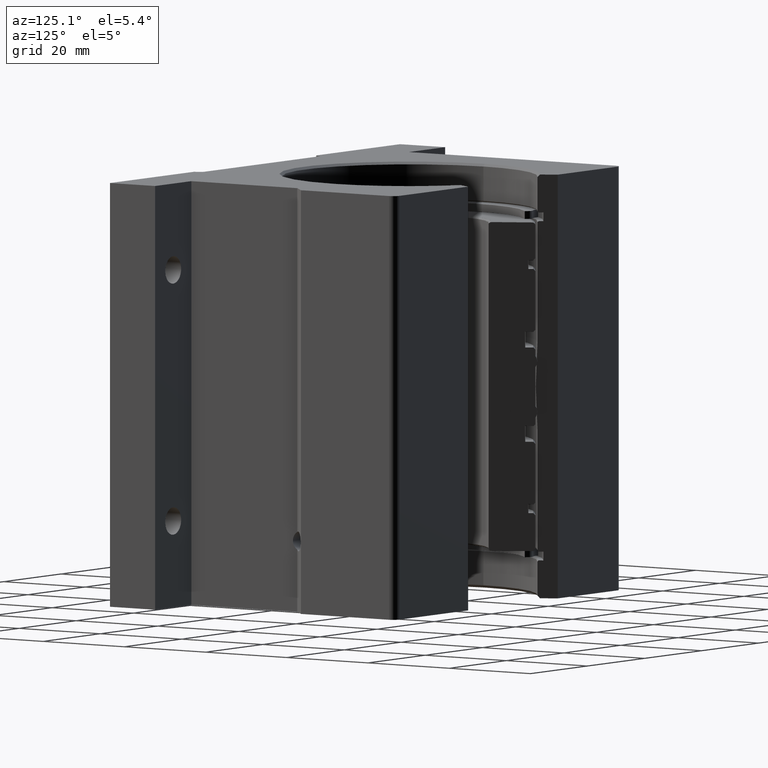
[diagram: clean part render]
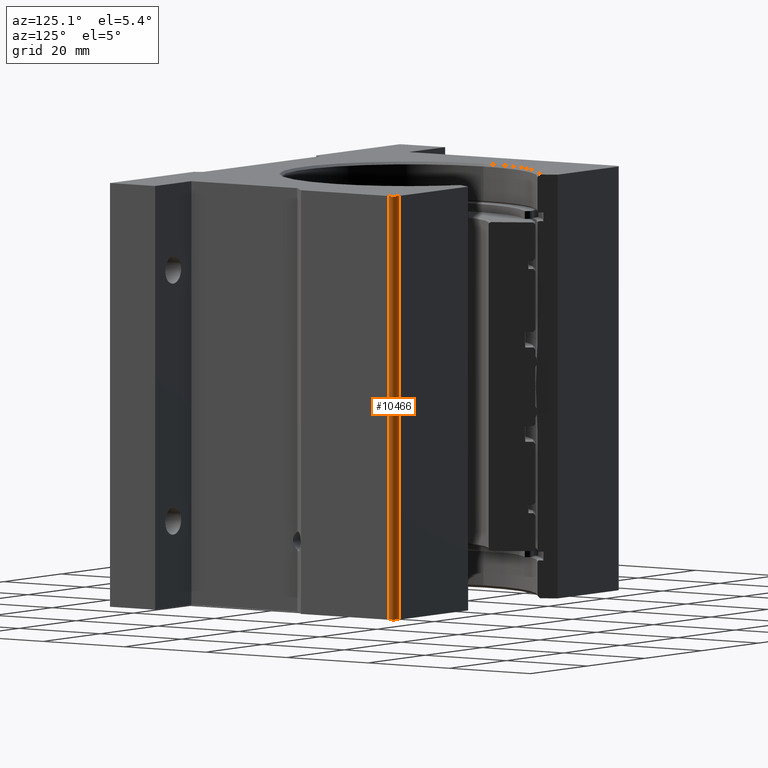
[diagram: same view with one face highlighted and labeled with its STEP entity id]
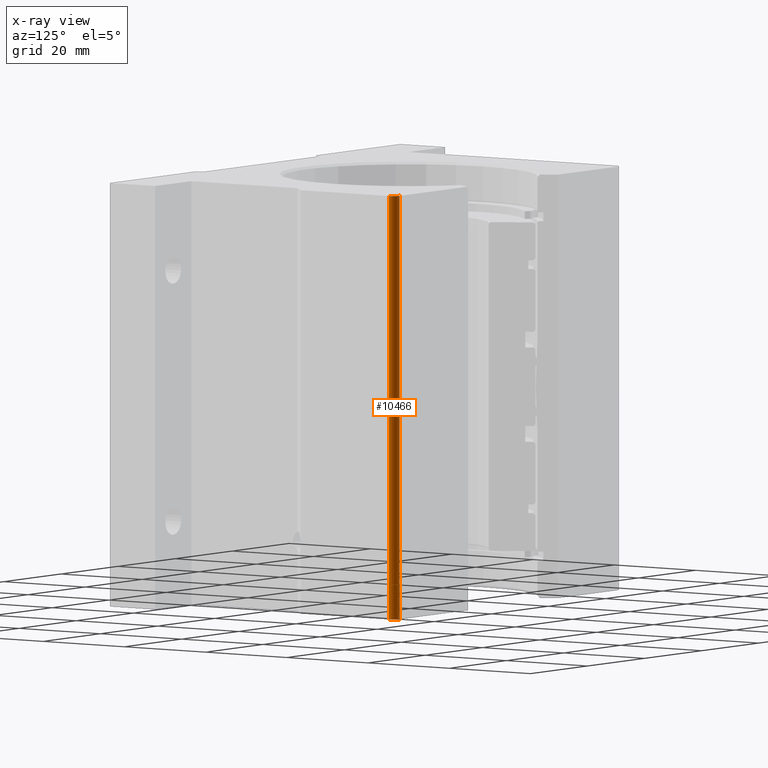
[diagram: x-ray of the same camera — body ghosted, the highlighted face saturated]
A machine part, auxiliary view. The second image highlights one B-rep face of the part: STEP entity #10466.
The next image is the same camera in x-ray: the body ghosted, the highlighted face saturated — about 0% of this face is hidden behind the body in this view.
In plain terms, the highlighted cylindrical surface (edge-blend (fillet) strip) has radius 1.524 mm, axis along (0, 0, -1).
Its self-contained STEP definition (entity closure, byte-faithful):
#133 = AXIS2_PLACEMENT_3D ( 'NONE', #4507, #10349, #3670 ) ;
#307 = ORIENTED_EDGE ( 'NONE', *, *, #6361, .F. ) ;
#375 = VERTEX_POINT ( 'NONE', #2478 ) ;
#626 = CARTESIAN_POINT ( 'NONE',  ( 1.624999999999999778, 0.9399999999999999467, 1.687500000000000000 ) ) ;
#670 = EDGE_CURVE ( 'NONE', #4131, #375, #1906, .T. ) ;
#1117 = CARTESIAN_POINT ( 'NONE',  ( 1.564999999999999725, 1.000000000000000000, -1.687500000000000000 ) ) ;
#1260 = VERTEX_POINT ( 'NONE', #6460 ) ;
#1266 = LINE ( 'NONE', #1117, #8236 ) ;
#1523 = CARTESIAN_POINT ( 'NONE',  ( 1.564999999999999725, 0.9399999999999999467, 1.687500000000000000 ) ) ;
#1666 = AXIS2_PLACEMENT_3D ( 'NONE', #6198, #1814, #10456 ) ;
#1814 = DIRECTION ( 'NONE',  ( 0.000000000000000000, -0.000000000000000000, -1.000000000000000000 ) ) ;
#1834 = CIRCLE ( 'NONE', #1666, 0.05999999999999990757 ) ;
#1906 = CIRCLE ( 'NONE', #4724, 0.05999999999999990757 ) ;
#2081 = ORIENTED_EDGE ( 'NONE', *, *, #3076, .F. ) ;
#2378 = CYLINDRICAL_SURFACE ( 'NONE', #133, 0.05999999999999990757 ) ;
#2397 = DIRECTION ( 'NONE',  ( 0.000000000000000000, 0.000000000000000000, 1.000000000000000000 ) ) ;
#2478 = CARTESIAN_POINT ( 'NONE',  ( 1.564999999999999725, 1.000000000000000000, 1.687500000000000000 ) ) ;
#2943 = CARTESIAN_POINT ( 'NONE',  ( 1.564999999999999725, 1.000000000000000000, -1.687500000000000000 ) ) ;
#3076 = EDGE_CURVE ( 'NONE', #1260, #4131, #6792, .T. ) ;
#3670 = DIRECTION ( 'NONE',  ( -1.000000000000000000, 0.000000000000000000, 0.000000000000000000 ) ) ;
#4040 = DIRECTION ( 'NONE',  ( -0.000000000000000000, 0.000000000000000000, 1.000000000000000000 ) ) ;
#4131 = VERTEX_POINT ( 'NONE', #626 ) ;
#4507 = CARTESIAN_POINT ( 'NONE',  ( 1.564999999999999725, 0.9399999999999999467, -2.732006582075958256 ) ) ;
#4689 = EDGE_CURVE ( 'NONE', #5870, #1260, #1834, .T. ) ;
#4724 = AXIS2_PLACEMENT_3D ( 'NONE', #1523, #4040, #4889 ) ;
#4889 = DIRECTION ( 'NONE',  ( 1.000000000000000000, 0.000000000000000000, 0.000000000000000000 ) ) ;
#5850 = ORIENTED_EDGE ( 'NONE', *, *, #4689, .F. ) ;
#5870 = VERTEX_POINT ( 'NONE', #2943 ) ;
#6198 = CARTESIAN_POINT ( 'NONE',  ( 1.564999999999999725, 0.9399999999999999467, -1.687500000000000000 ) ) ;
#6361 = EDGE_CURVE ( 'NONE', #375, #5870, #1266, .T. ) ;
#6460 = CARTESIAN_POINT ( 'NONE',  ( 1.624999999999999778, 0.9399999999999999467, -1.687500000000000000 ) ) ;
#6792 = LINE ( 'NONE', #9235, #8152 ) ;
#7156 = DIRECTION ( 'NONE',  ( -0.000000000000000000, -0.000000000000000000, -1.000000000000000000 ) ) ;
#7365 = EDGE_LOOP ( 'NONE', ( #5850, #307, #10858, #2081 ) ) ;
#8152 = VECTOR ( 'NONE', #2397, 39.37007874015748143 ) ;
#8236 = VECTOR ( 'NONE', #7156, 39.37007874015748143 ) ;
#8349 = FACE_OUTER_BOUND ( 'NONE', #7365, .T. ) ;
#9235 = CARTESIAN_POINT ( 'NONE',  ( 1.624999999999999778, 0.9399999999999999467, 1.687500000000000000 ) ) ;
#10349 = DIRECTION ( 'NONE',  ( 0.000000000000000000, 0.000000000000000000, -1.000000000000000000 ) ) ;
#10456 = DIRECTION ( 'NONE',  ( 1.000000000000000000, 0.000000000000000000, 0.000000000000000000 ) ) ;
#10466 = ADVANCED_FACE ( 'NONE', ( #8349 ), #2378, .T. ) ;
#10858 = ORIENTED_EDGE ( 'NONE', *, *, #670, .F. ) ;